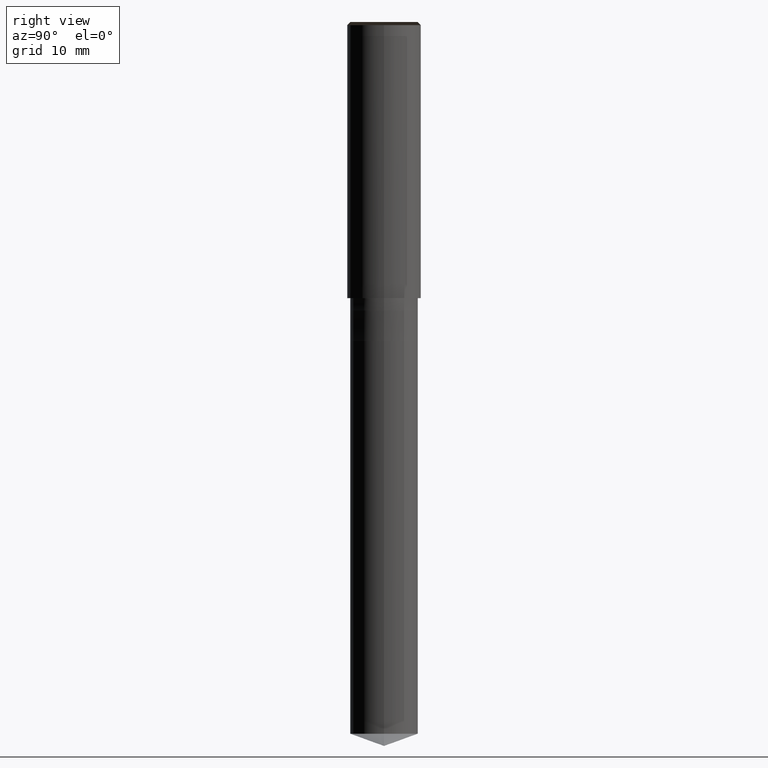
[diagram: clean part render]
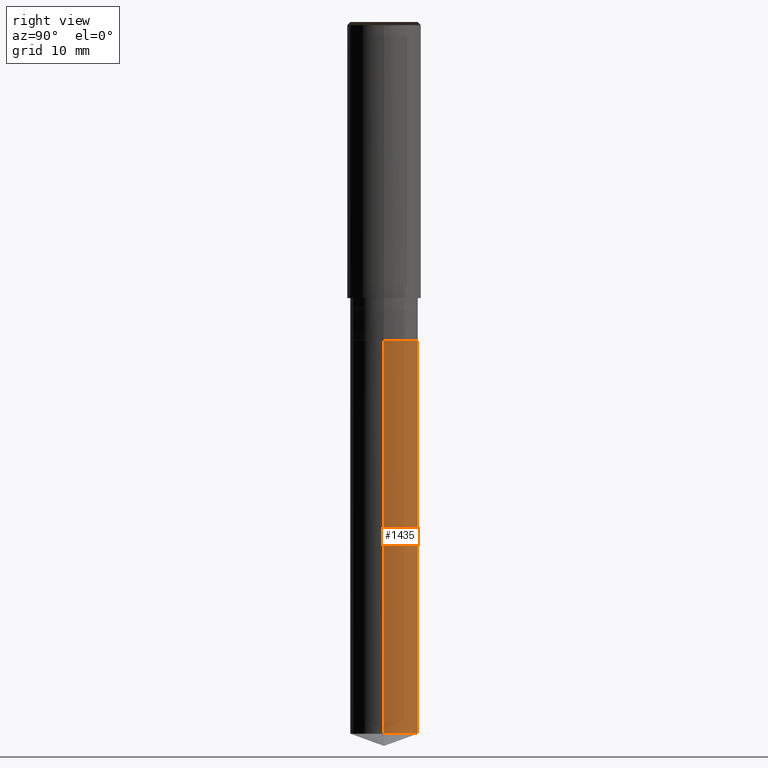
[diagram: same view with one face highlighted and labeled with its STEP entity id]
A machine part, right view. The second image highlights one B-rep face of the part: STEP entity #1435.
In plain terms, the highlighted face is a freeform B-spline surface patch.
Its self-contained STEP definition (entity closure, byte-faithful):
#1337=CARTESIAN_POINT('',(5.5,0.0,-70.998163711536));
#1338=CARTESIAN_POINT('',(5.5,5.5,-70.998163711536));
#1339=CARTESIAN_POINT('',(0.0,5.5,-70.998163711536));
#1340=CARTESIAN_POINT('',(-5.5,5.5,-70.998163711536));
#1341=CARTESIAN_POINT('',(-5.5,0.0,-70.998163711536));
#1342=CARTESIAN_POINT('',(5.5,0.0,-7.0));
#1343=CARTESIAN_POINT('',(5.5,5.5,-7.0));
#1344=CARTESIAN_POINT('',(0.0,5.5,-7.0));
#1345=CARTESIAN_POINT('',(-5.5,5.5,-7.0));
#1346=CARTESIAN_POINT('',(-5.5,0.0,-7.0));
#1416=(
BOUNDED_SURFACE()
B_SPLINE_SURFACE(1,2,(
(#1337,#1338,#1339,#1340,#1341),
(#1342,#1343,#1344,#1345,#1346)
), .UNSPECIFIED.,.F.,.F.,.F.)
B_SPLINE_SURFACE_WITH_KNOTS((2,2),(3,2,3),(
0.0,1.0),(
0.0,0.5,1.0), .UNSPECIFIED.)
GEOMETRIC_REPRESENTATION_ITEM()
RATIONAL_B_SPLINE_SURFACE(((1.0,0.707106781187,1.0,0.707106781187,1.0),
(1.0,0.707106781187,1.0,0.707106781187,1.0)
))
REPRESENTATION_ITEM('')
SURFACE()
);
#1417=(
BOUNDED_CURVE()
B_SPLINE_CURVE(2,(#1341,#1340,#1339,#1338,#1337),.UNSPECIFIED.,.F.,.F.)
B_SPLINE_CURVE_WITH_KNOTS((3,2,3),
(0.0,0.5,1.0),.UNSPECIFIED.)
CURVE()
GEOMETRIC_REPRESENTATION_ITEM()
RATIONAL_B_SPLINE_CURVE((1.0,0.707106781187,1.0,0.707106781187,1.0))
REPRESENTATION_ITEM('')
);
#1418=(
BOUNDED_CURVE()
B_SPLINE_CURVE(1,(#1337,#1342),.UNSPECIFIED.,.F.,.F.)
B_SPLINE_CURVE_WITH_KNOTS((2,2),
(0.0,1.0),.UNSPECIFIED.)
CURVE()
GEOMETRIC_REPRESENTATION_ITEM()
RATIONAL_B_SPLINE_CURVE((1.0,1.0))
REPRESENTATION_ITEM('')
);
#1419=(
BOUNDED_CURVE()
B_SPLINE_CURVE(2,(#1342,#1343,#1344,#1345,#1346),.UNSPECIFIED.,.F.,.F.)
B_SPLINE_CURVE_WITH_KNOTS((3,2,3),
(0.0,0.5,1.0),.UNSPECIFIED.)
CURVE()
GEOMETRIC_REPRESENTATION_ITEM()
RATIONAL_B_SPLINE_CURVE((1.0,0.707106781187,1.0,0.707106781187,1.0))
REPRESENTATION_ITEM('')
);
#1420=(
BOUNDED_CURVE()
B_SPLINE_CURVE(1,(#1346,#1341),.UNSPECIFIED.,.F.,.F.)
B_SPLINE_CURVE_WITH_KNOTS((2,2),
(0.0,1.0),.UNSPECIFIED.)
CURVE()
GEOMETRIC_REPRESENTATION_ITEM()
RATIONAL_B_SPLINE_CURVE((1.0,1.0))
REPRESENTATION_ITEM('')
);
#1421=VERTEX_POINT('',#1337);
#1422=VERTEX_POINT('',#1341);
#1423=VERTEX_POINT('',#1342);
#1424=VERTEX_POINT('',#1346);
#1425=EDGE_CURVE('',#1422,#1421,#1417,.T.);
#1426=EDGE_CURVE('',#1421,#1423,#1418,.T.);
#1427=EDGE_CURVE('',#1423,#1424,#1419,.T.);
#1428=EDGE_CURVE('',#1424,#1422,#1420,.T.);
#1429=ORIENTED_EDGE('',*,*,#1425,.T.);
#1430=ORIENTED_EDGE('',*,*,#1426,.T.);
#1431=ORIENTED_EDGE('',*,*,#1427,.T.);
#1432=ORIENTED_EDGE('',*,*,#1428,.T.);
#1433=EDGE_LOOP('',(#1429,#1430,#1431,#1432));
#1434=FACE_OUTER_BOUND('',#1433,.T.);
#1435=ADVANCED_FACE('',(#1434),#1416,.T.);